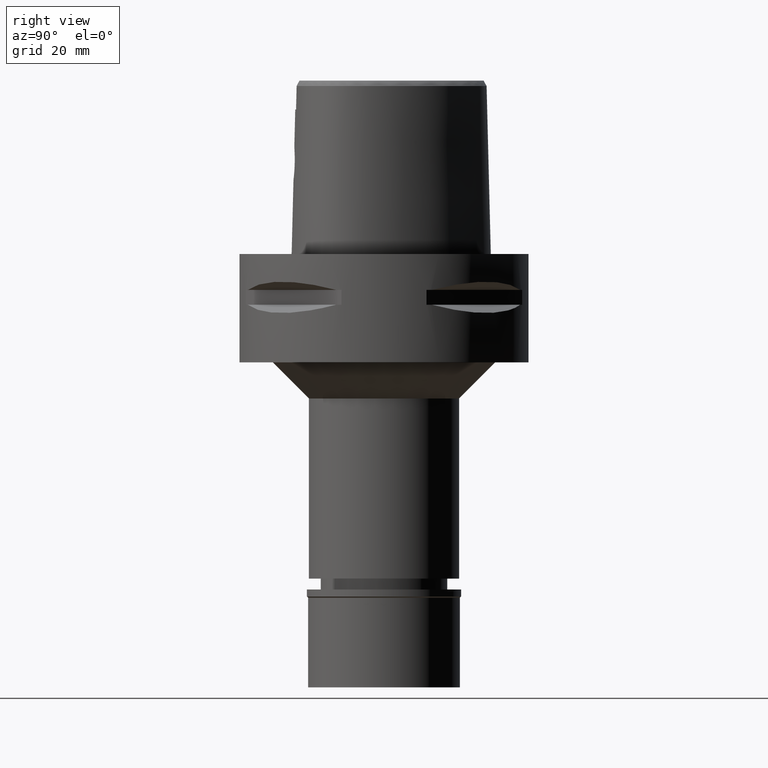
[diagram: clean part render]
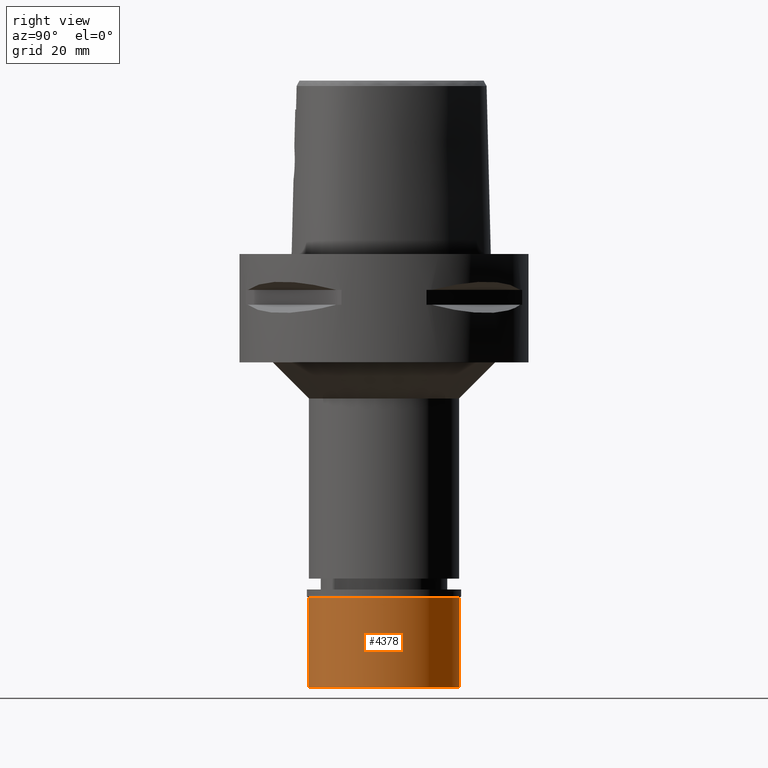
[diagram: same view with one face highlighted and labeled with its STEP entity id]
A machine part, right view. The second image highlights one B-rep face of the part: STEP entity #4378.
In plain terms, the highlighted cylindrical surface (partial cylindrical patch) has radius 21 mm, axis along (0, 0, -1).
Its self-contained STEP definition (entity closure, byte-faithful):
#29 = LINE ( 'NONE', #4618, #3509 ) ;
#418 = CIRCLE ( 'NONE', #4245, 21.00000000000000000 ) ;
#523 = CARTESIAN_POINT ( 'NONE',  ( 0.0000000000000000000, -21.00000000000000000, -27.09999999999999787 ) ) ;
#573 = EDGE_CURVE ( 'NONE', #2240, #1117, #29, .T. ) ;
#608 = AXIS2_PLACEMENT_3D ( 'NONE', #1445, #1146, #4639 ) ;
#630 = ORIENTED_EDGE ( 'NONE', *, *, #2333, .T. ) ;
#851 = EDGE_LOOP ( 'NONE', ( #630, #3014, #1830, #4733 ) ) ;
#957 = DIRECTION ( 'NONE',  ( 0.0000000000000000000, 0.0000000000000000000, -1.000000000000000000 ) ) ;
#1017 = DIRECTION ( 'NONE',  ( 0.0000000000000000000, 0.0000000000000000000, -1.000000000000000000 ) ) ;
#1117 = VERTEX_POINT ( 'NONE', #523 ) ;
#1146 = DIRECTION ( 'NONE',  ( 0.0000000000000000000, 0.0000000000000000000, -1.000000000000000000 ) ) ;
#1445 = CARTESIAN_POINT ( 'NONE',  ( 0.0000000000000000000, 0.0000000000000000000, 0.0000000000000000000 ) ) ;
#1462 = EDGE_CURVE ( 'NONE', #1117, #4090, #418, .T. ) ;
#1504 = CARTESIAN_POINT ( 'NONE',  ( 0.0000000000000000000, -21.00000000000000000, -2.299999999999999822 ) ) ;
#1713 = DIRECTION ( 'NONE',  ( 0.0000000000000000000, 1.000000000000000000, 0.0000000000000000000 ) ) ;
#1830 = ORIENTED_EDGE ( 'NONE', *, *, #1462, .T. ) ;
#1864 = VERTEX_POINT ( 'NONE', #3788 ) ;
#2003 = DIRECTION ( 'NONE',  ( 0.0000000000000000000, 0.0000000000000000000, -1.000000000000000000 ) ) ;
#2231 = AXIS2_PLACEMENT_3D ( 'NONE', #3725, #957, #1713 ) ;
#2240 = VERTEX_POINT ( 'NONE', #1504 ) ;
#2281 = DIRECTION ( 'NONE',  ( 0.0000000000000000000, -1.000000000000000000, 0.0000000000000000000 ) ) ;
#2333 = EDGE_CURVE ( 'NONE', #1864, #2240, #3049, .T. ) ;
#2615 = FACE_OUTER_BOUND ( 'NONE', #851, .T. ) ;
#2732 = CARTESIAN_POINT ( 'NONE',  ( 0.0000000000000000000, 0.0000000000000000000, -27.09999999999999787 ) ) ;
#3014 = ORIENTED_EDGE ( 'NONE', *, *, #573, .T. ) ;
#3049 = CIRCLE ( 'NONE', #2231, 21.00000000000000000 ) ;
#3187 = CARTESIAN_POINT ( 'NONE',  ( 0.0000000000000000000, 21.00000000000000000, -27.09999999999999787 ) ) ;
#3272 = EDGE_CURVE ( 'NONE', #1864, #4090, #3308, .T. ) ;
#3308 = LINE ( 'NONE', #4492, #4499 ) ;
#3509 = VECTOR ( 'NONE', #2003, 1000.000000000000000 ) ;
#3725 = CARTESIAN_POINT ( 'NONE',  ( 0.0000000000000000000, 0.0000000000000000000, -2.299999999999999822 ) ) ;
#3788 = CARTESIAN_POINT ( 'NONE',  ( 0.0000000000000000000, 21.00000000000000000, -2.299999999999999822 ) ) ;
#3889 = CYLINDRICAL_SURFACE ( 'NONE', #608, 21.00000000000000000 ) ;
#4090 = VERTEX_POINT ( 'NONE', #3187 ) ;
#4245 = AXIS2_PLACEMENT_3D ( 'NONE', #2732, #4275, #2281 ) ;
#4275 = DIRECTION ( 'NONE',  ( 0.0000000000000000000, 0.0000000000000000000, 1.000000000000000000 ) ) ;
#4378 = ADVANCED_FACE ( 'NONE', ( #2615 ), #3889, .T. ) ;
#4492 = CARTESIAN_POINT ( 'NONE',  ( 0.0000000000000000000, 21.00000000000000000, -2.299999999999999822 ) ) ;
#4499 = VECTOR ( 'NONE', #1017, 1000.000000000000000 ) ;
#4618 = CARTESIAN_POINT ( 'NONE',  ( 0.0000000000000000000, -21.00000000000000000, -2.299999999999999822 ) ) ;
#4639 = DIRECTION ( 'NONE',  ( 0.0000000000000000000, -1.000000000000000000, 0.0000000000000000000 ) ) ;
#4733 = ORIENTED_EDGE ( 'NONE', *, *, #3272, .F. ) ;